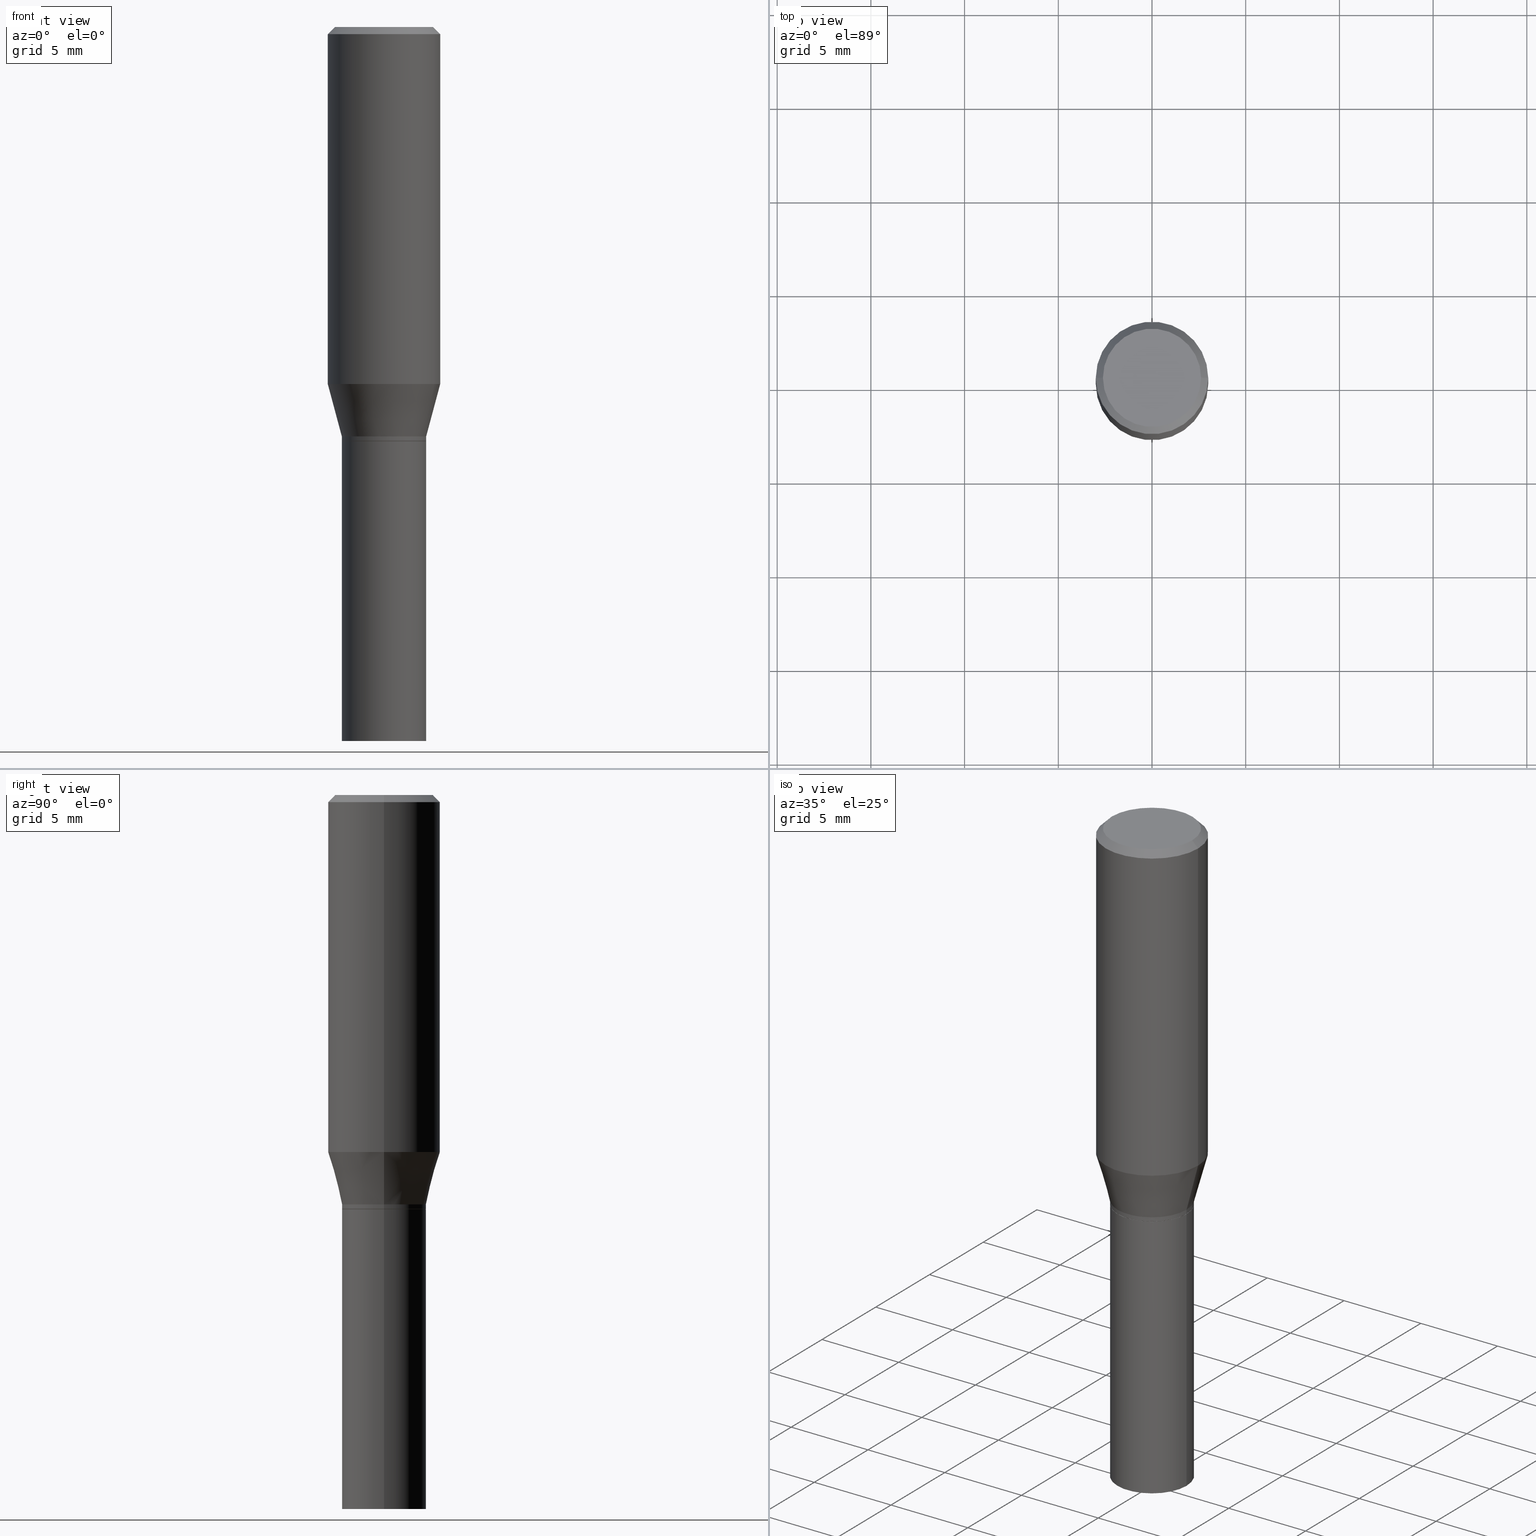
[diagram: canonical four-view strip — front | top / right | iso, engineering-drawing reading convention]
A machine part, canonical four-view strip (front | top / right | iso — engineering-drawing reading convention). The complete STEP part file that produces these views, byte-faithful:
ISO-10303-21;
HEADER;
FILE_DESCRIPTION (( 'STEP AP203' ),
    '1' );
FILE_NAME ('48678.STEP',
    '2024-03-12T19:42:43',
    ( '' ),
    ( '' ),
    'SwSTEP 2.0',
    'SolidWorks 2023',
    '' );
FILE_SCHEMA (( 'CONFIG_CONTROL_DESIGN' ));
ENDSEC;

DATA;
#1 = DIRECTION ( 'NONE',  ( -1.000000000000000000, 6.982962677686265922E-15, -4.876176775795935793E-29 ) ) ;
#2 = AXIS2_PLACEMENT_3D ( 'NONE', #188, #145, #253 ) ;
#3 = PLANE ( 'NONE',  #143 ) ;
#4 = DIRECTION ( 'NONE',  ( -2.445468806185136597E-29, 3.491481338843145583E-15, 1.000000000000000000 ) ) ;
#5 = APPROVAL_PERSON_ORGANIZATION ( #317, #271, #131 ) ;
#6 = EDGE_CURVE ( 'NONE', #165, #17, #219, .T. ) ;
#7 = CARTESIAN_POINT ( 'NONE',  ( 2.127802408261687534E-29, -3.037937912927420812E-15, -0.8700999999999999845 ) ) ;
#8 = EDGE_LOOP ( 'NONE', ( #238, #308 ) ) ;
#9 = COORDINATED_UNIVERSAL_TIME_OFFSET ( 5, 0, .BEHIND. ) ;
#10 = ORIENTED_EDGE ( 'NONE', *, *, #411, .T. ) ;
#11 = CARTESIAN_POINT ( 'NONE',  ( 2.127802408261687534E-29, -3.037937912927420812E-15, -0.8700999999999999845 ) ) ;
#12 = CC_DESIGN_DATE_AND_TIME_ASSIGNMENT ( #114, #262, ( #212 ) ) ;
#13 = EDGE_CURVE ( 'NONE', #273, #16, #123, .T. ) ;
#14 = CONICAL_SURFACE ( 'NONE', #81, 0.08809999999999999776, 0.7853981633977384913 ) ;
#15 =( LENGTH_UNIT ( ) NAMED_UNIT ( * ) SI_UNIT ( $, .METRE. ) );
#16 = VERTEX_POINT ( 'NONE', #306 ) ;
#17 = VERTEX_POINT ( 'NONE', #122 ) ;
#18 = DIRECTION ( 'NONE',  ( -2.445468806185136597E-29, 3.491481338843145583E-15, 1.000000000000000000 ) ) ;
#19 = ORIENTED_EDGE ( 'NONE', *, *, #33, .F. ) ;
#20 = DIRECTION ( 'NONE',  ( 1.000000000000000000, -6.982962677686266711E-15, 0.000000000000000000 ) ) ;
#21 = DIRECTION ( 'NONE',  ( -1.000000000000000000, 6.982962677686265922E-15, -4.876176775795935793E-29 ) ) ;
#22 = PRODUCT ( '48678', '48678', '', ( #224 ) ) ;
#23 = APPROVAL_DATE_TIME ( #349, #390 ) ;
#24 = ADVANCED_FACE ( 'NONE', ( #344 ), #202, .F. ) ;
#25 = VERTEX_POINT ( 'NONE', #443 ) ;
#26 = VERTEX_POINT ( 'NONE', #153 ) ;
#27 = VECTOR ( 'NONE', #71, 39.37007874015748143 ) ;
#28 = VERTEX_POINT ( 'NONE', #386 ) ;
#29 = AXIS2_PLACEMENT_3D ( 'NONE', #151, #302, #268 ) ;
#30 = DIRECTION ( 'NONE',  ( 1.000000000000000000, -6.982962677686266711E-15, 0.000000000000000000 ) ) ;
#31 = DATE_AND_TIME ( #462, #246 ) ;
#32 = CARTESIAN_POINT ( 'NONE',  ( -0.08809999999999999776, -2.411949762722772465E-15, -0.8700999999999999845 ) ) ;
#33 = EDGE_CURVE ( 'NONE', #17, #192, #161, .T. ) ;
#34 = SECURITY_CLASSIFICATION_LEVEL ( 'unclassified' ) ;
#35 = ORIENTED_EDGE ( 'NONE', *, *, #37, .F. ) ;
#36 = DIRECTION ( 'NONE',  ( -2.445468806185136597E-29, 3.491481338843145583E-15, 1.000000000000000000 ) ) ;
#37 = EDGE_CURVE ( 'NONE', #165, #57, #420, .T. ) ;
#38 = CLOSED_SHELL ( 'NONE', ( #463, #70, #193, #277, #105, #63, #404, #91, #24, #249, #326, #243 ) ) ;
#39 = CC_DESIGN_APPROVAL ( #390, ( #212 ) ) ;
#40 = LINE ( 'NONE', #177, #426 ) ;
#41 = FACE_OUTER_BOUND ( 'NONE', #259, .T. ) ;
#42 = EDGE_LOOP ( 'NONE', ( #350, #311 ) ) ;
#43 = CYLINDRICAL_SURFACE ( 'NONE', #45, 0.1180999999999999966 ) ;
#44 = DIRECTION ( 'NONE',  ( -2.445468806185136597E-29, 3.491481338843145583E-15, 1.000000000000000000 ) ) ;
#45 = AXIS2_PLACEMENT_3D ( 'NONE', #187, #4, #221 ) ;
#46 = COORDINATED_UNIVERSAL_TIME_OFFSET ( 5, 0, .BEHIND. ) ;
#47 = PERSON_AND_ORGANIZATION ( #185, #180 ) ;
#48 = ORIENTED_EDGE ( 'NONE', *, *, #37, .T. ) ;
#49 = EDGE_LOOP ( 'NONE', ( #108, #169, #53, #35 ) ) ;
#50 = CARTESIAN_POINT ( 'NONE',  ( 0.000000000000000000, 0.000000000000000000, 0.000000000000000000 ) ) ;
#51 = ORIENTED_EDGE ( 'NONE', *, *, #261, .T. ) ;
#52 = DIRECTION ( 'NONE',  ( -2.445468806185136597E-29, 3.491481338843145583E-15, 1.000000000000000000 ) ) ;
#53 = ORIENTED_EDGE ( 'NONE', *, *, #348, .F. ) ;
#54 = CLOSED_SHELL ( 'NONE', ( #222, #78, #298, #330 ) ) ;
#55 = AXIS2_PLACEMENT_3D ( 'NONE', #141, #129, #242 ) ;
#56 =( CONVERSION_BASED_UNIT ( 'INCH', #413 ) LENGTH_UNIT ( ) NAMED_UNIT ( #267 ) );
#57 = VERTEX_POINT ( 'NONE', #269 ) ;
#58 = ORIENTED_EDGE ( 'NONE', *, *, #358, .F. ) ;
#59 = APPLICATION_PROTOCOL_DEFINITION ( 'international standard', 'config_control_design', 1994, #274 ) ;
#60 = EDGE_LOOP ( 'NONE', ( #287, #450, #247, #126 ) ) ;
#61 = DIRECTION ( 'NONE',  ( 1.000000000000000000, -6.982962677686264344E-15, 0.000000000000000000 ) ) ;
#62 = VERTEX_POINT ( 'NONE', #166 ) ;
#63 = ADVANCED_FACE ( 'NONE', ( #90 ), #147, .T. ) ;
#64 = ORIENTED_EDGE ( 'NONE', *, *, #113, .F. ) ;
#65 = ORIENTED_EDGE ( 'NONE', *, *, #6, .F. ) ;
#66 = AXIS2_PLACEMENT_3D ( 'NONE', #264, #451, #232 ) ;
#67 = CIRCLE ( 'NONE', #332, 0.08809999999999999776 ) ;
#68 = CARTESIAN_POINT ( 'NONE',  ( 3.668203209277705088E-31, -5.237222008264718399E-17, -0.01499999999999999944 ) ) ;
#69 = DIRECTION ( 'NONE',  ( 1.000000000000000000, -6.982962677686264344E-15, 0.000000000000000000 ) ) ;
#70 = ADVANCED_FACE ( 'NONE', ( #127 ), #295, .T. ) ;
#71 = DIRECTION ( 'NONE',  ( -2.445468806185136877E-29, 3.491481338843145188E-15, 1.000000000000000000 ) ) ;
#72 = COORDINATED_UNIVERSAL_TIME_OFFSET ( 5, 0, .BEHIND. ) ;
#73 = DIRECTION ( 'NONE',  ( -2.438088387897960049E-29, 3.491481338843145188E-15, 1.000000000000000000 ) ) ;
#74 = AXIS2_PLACEMENT_3D ( 'NONE', #402, #104, #218 ) ;
#75 = CARTESIAN_POINT ( 'NONE',  ( -0.08859999999999999820, -3.508039096712621630E-15, -1.500000000000000222 ) ) ;
#76 = CIRCLE ( 'NONE', #340, 0.1180999999999999966 ) ;
#77 = DIRECTION ( 'NONE',  ( -2.445468806185136877E-29, 3.491481338843145188E-15, 1.000000000000000000 ) ) ;
#78 = ADVANCED_FACE ( 'NONE', ( #41 ), #323, .F. ) ;
#79 = FACE_OUTER_BOUND ( 'NONE', #159, .T. ) ;
#80 = VECTOR ( 'NONE', #288, 39.37007874015748143 ) ;
#81 = AXIS2_PLACEMENT_3D ( 'NONE', #11, #446, #69 ) ;
#82 = AXIS2_PLACEMENT_3D ( 'NONE', #395, #36, #461 ) ;
#83 = ORIENTED_EDGE ( 'NONE', *, *, #324, .T. ) ;
#84 = LINE ( 'NONE', #117, #392 ) ;
#85 = EDGE_LOOP ( 'NONE', ( #194, #83 ) ) ;
#86 = LINE ( 'NONE', #195, #112 ) ;
#87 = EDGE_LOOP ( 'NONE', ( #353, #94, #58, #387 ) ) ;
#88 = AXIS2_PLACEMENT_3D ( 'NONE', #339, #107, #265 ) ;
#89 = VERTEX_POINT ( 'NONE', #214 ) ;
#90 = FACE_OUTER_BOUND ( 'NONE', #375, .T. ) ;
#91 = ADVANCED_FACE ( 'NONE', ( #240 ), #110, .T. ) ;
#92 = CALENDAR_DATE ( 2024, 12, 3 ) ;
#93 = ORIENTED_EDGE ( 'NONE', *, *, #162, .T. ) ;
#94 = ORIENTED_EDGE ( 'NONE', *, *, #437, .T. ) ;
#95 = DIRECTION ( 'NONE',  ( 1.000000000000000000, -6.982962677686264344E-15, 0.000000000000000000 ) ) ;
#96 = VECTOR ( 'NONE', #356, 39.37007874015748854 ) ;
#97 = AXIS2_PLACEMENT_3D ( 'NONE', #377, #18, #230 ) ;
#98 = LINE ( 'NONE', #182, #80 ) ;
#99 = CARTESIAN_POINT ( 'NONE',  ( 2.127802408261687534E-29, -3.037937912927421601E-15, -0.8701000000000000956 ) ) ;
#100 = FACE_OUTER_BOUND ( 'NONE', #229, .T. ) ;
#101 = LOCAL_TIME ( 15, 42, 43.00000000000000000, #275 ) ;
#102 = FACE_OUTER_BOUND ( 'NONE', #87, .T. ) ;
#103 = EDGE_CURVE ( 'NONE', #334, #17, #171, .T. ) ;
#104 = DIRECTION ( 'NONE',  ( -2.445468806185136597E-29, 3.491481338843145583E-15, 1.000000000000000000 ) ) ;
#105 = ADVANCED_FACE ( 'NONE', ( #133 ), #417, .T. ) ;
#106 = AXIS2_PLACEMENT_3D ( 'NONE', #442, #160, #20 ) ;
#107 = DIRECTION ( 'NONE',  ( -2.445468806185136597E-29, 3.491481338843145583E-15, 1.000000000000000000 ) ) ;
#108 = ORIENTED_EDGE ( 'NONE', *, *, #6, .T. ) ;
#109 = CYLINDRICAL_SURFACE ( 'NONE', #29, 0.08859999999999999820 ) ;
#110 = CONICAL_SURFACE ( 'NONE', #363, 0.1180999999999999966, 0.7853981633974543852 ) ;
#111 = EDGE_LOOP ( 'NONE', ( #225, #93, #418, #305 ) ) ;
#112 = VECTOR ( 'NONE', #154, 39.37007874015748143 ) ;
#113 = EDGE_CURVE ( 'NONE', #441, #16, #424, .T. ) ;
#114 = DATE_AND_TIME ( #304, #364 ) ;
#115 = ORIENTED_EDGE ( 'NONE', *, *, #383, .F. ) ;
#116 = CARTESIAN_POINT ( 'NONE',  ( 3.668203209277705088E-31, -5.237222008264718399E-17, -0.01499999999999999944 ) ) ;
#117 = CARTESIAN_POINT ( 'NONE',  ( -0.1180999999999999966, 7.723156721521009862E-16, -0.01499999999999999944 ) ) ;
#118 = ORIENTED_EDGE ( 'NONE', *, *, #366, .T. ) ;
#119 = DIRECTION ( 'NONE',  ( 0.2588190451025210170, 1.565188264969624531E-15, 0.9659258262890682012 ) ) ;
#120 = ORIENTED_EDGE ( 'NONE', *, *, #383, .T. ) ;
#121 = CARTESIAN_POINT ( 'NONE',  ( 2.127802408261687534E-29, -3.037937912927420812E-15, -0.8700999999999999845 ) ) ;
#122 = CARTESIAN_POINT ( 'NONE',  ( -0.08859999999999995657, -2.076478992314868500E-15, -0.8601000000000001977 ) ) ;
#123 = CIRCLE ( 'NONE', #314, 0.1180999999999999966 ) ;
#124 = AXIS2_PLACEMENT_3D ( 'NONE', #367, #44, #186 ) ;
#125 = FACE_OUTER_BOUND ( 'NONE', #379, .T. ) ;
#126 = ORIENTED_EDGE ( 'NONE', *, *, #436, .F. ) ;
#127 = FACE_OUTER_BOUND ( 'NONE', #376, .T. ) ;
#128 = COORDINATED_UNIVERSAL_TIME_OFFSET ( 5, 0, .BEHIND. ) ;
#129 = DIRECTION ( 'NONE',  ( -2.445468806185136597E-29, 3.491481338843145583E-15, 1.000000000000000000 ) ) ;
#130 = CC_DESIGN_PERSON_AND_ORGANIZATION_ASSIGNMENT ( #396, #432, ( #419 ) ) ;
#131 = APPROVAL_ROLE ( '' ) ;
#132 = MANIFOLD_SOLID_BREP ( 'Body-Move/Copy2[1]', #54 ) ;
#133 = FACE_OUTER_BOUND ( 'NONE', #49, .T. ) ;
#134 = CIRCLE ( 'NONE', #372, 0.08859999999999999820 ) ;
#135 = CIRCLE ( 'NONE', #406, 0.1180999999999999966 ) ;
#136 = FACE_OUTER_BOUND ( 'NONE', #8, .T. ) ;
#137 = PERSON_AND_ORGANIZATION ( #185, #180 ) ;
#138 = ORIENTED_EDGE ( 'NONE', *, *, #157, .T. ) ;
#139 = CARTESIAN_POINT ( 'NONE',  ( 1.834112612126108016E-29, -2.618626719906874095E-15, -0.7500045011767182412 ) ) ;
#140 = APPROVAL_DATE_TIME ( #31, #271 ) ;
#141 = CARTESIAN_POINT ( 'NONE',  ( 0.000000000000000000, 0.000000000000000000, 0.000000000000000000 ) ) ;
#142 = AXIS2_PLACEMENT_3D ( 'NONE', #325, #361, #30 ) ;
#143 = AXIS2_PLACEMENT_3D ( 'NONE', #146, #256, #1 ) ;
#144 = CARTESIAN_POINT ( 'NONE',  ( 1.834112612126108016E-29, -2.618626719906874095E-15, -0.7500045011767182412 ) ) ;
#145 = DIRECTION ( 'NONE',  ( -2.445468806185136597E-29, 3.491481338843145583E-15, 1.000000000000000000 ) ) ;
#146 = CARTESIAN_POINT ( 'NONE',  ( 6.186904932430243507E-16, 0.08859999999999695897, -0.8701000000000003176 ) ) ;
#147 = CONICAL_SURFACE ( 'NONE', #327, 0.08859999999999995657, 0.2617993877991496854 ) ;
#148 = LINE ( 'NONE', #408, #296 ) ;
#149 = AXIS2_PLACEMENT_3D ( 'NONE', #99, #244, #294 ) ;
#150 = PERSON_AND_ORGANIZATION ( #185, #180 ) ;
#151 = CARTESIAN_POINT ( 'NONE',  ( 0.000000000000000000, 0.000000000000000000, 0.000000000000000000 ) ) ;
#152 = EDGE_CURVE ( 'NONE', #17, #165, #399, .T. ) ;
#153 = CARTESIAN_POINT ( 'NONE',  ( -0.08859999999999999820, -3.508039096712621630E-15, -0.8701000000000000956 ) ) ;
#154 = DIRECTION ( 'NONE',  ( 0.7071067811867527420, -2.468850131084406312E-15, 0.7071067811863422925 ) ) ;
#155 = ORIENTED_EDGE ( 'NONE', *, *, #103, .F. ) ;
#156 = AXIS2_PLACEMENT_3D ( 'NONE', #362, #393, #464 ) ;
#157 = EDGE_CURVE ( 'NONE', #57, #16, #40, .T. ) ;
#158 = CARTESIAN_POINT ( 'NONE',  ( -0.08809999999999999776, -2.409300535548661264E-15, -0.8700999999999999845 ) ) ;
#159 = EDGE_LOOP ( 'NONE', ( #416, #263, #138, #336 ) ) ;
#160 = DIRECTION ( 'NONE',  ( -2.445468806185136597E-29, 3.491481338843145583E-15, 1.000000000000000000 ) ) ;
#161 = LINE ( 'NONE', #309, #331 ) ;
#162 = EDGE_CURVE ( 'NONE', #192, #273, #98, .T. ) ;
#163 = LINE ( 'NONE', #333, #199 ) ;
#164 = ORIENTED_EDGE ( 'NONE', *, *, #200, .T. ) ;
#165 = VERTEX_POINT ( 'NONE', #428 ) ;
#166 = CARTESIAN_POINT ( 'NONE',  ( 0.08860000000000017861, -3.654882665501004233E-15, -0.8696000000000000396 ) ) ;
#167 = LOCAL_TIME ( 15, 42, 43.00000000000000000, #72 ) ;
#168 = APPROVAL_STATUS ( 'not_yet_approved' ) ;
#169 = ORIENTED_EDGE ( 'NONE', *, *, #33, .T. ) ;
#170 = CC_DESIGN_DATE_AND_TIME_ASSIGNMENT ( #460, #423, ( #454 ) ) ;
#171 = LINE ( 'NONE', #285, #27 ) ;
#172 = APPLICATION_CONTEXT ( 'configuration controlled 3d designs of mechanical parts and assemblies' ) ;
#173 = APPROVAL_DATE_TIME ( #278, #345 ) ;
#174 = CYLINDRICAL_SURFACE ( 'NONE', #55, 0.08859999999999999820 ) ;
#175 = EDGE_CURVE ( 'NONE', #192, #57, #76, .T. ) ;
#176 = PERSON_AND_ORGANIZATION ( #185, #180 ) ;
#177 = CARTESIAN_POINT ( 'NONE',  ( 0.1180999999999999966, -8.246878922347480654E-16, 5.758764772215000440E-30 ) ) ;
#178 = PRODUCT_RELATED_PRODUCT_CATEGORY ( 'detail', '', ( #22 ) ) ;
#179 = VECTOR ( 'NONE', #119, 39.37007874015748143 ) ;
#180 = ORGANIZATION ( 'UNSPECIFIED', 'UNSPECIFIED', '' ) ;
#181 = CC_DESIGN_APPROVAL ( #345, ( #454 ) ) ;
#182 = CARTESIAN_POINT ( 'NONE',  ( -0.1180999999999999966, 8.391509709326782957E-16, -5.809262341591043784E-30 ) ) ;
#183 = EDGE_CURVE ( 'NONE', #448, #201, #134, .T. ) ;
#184 = DIRECTION ( 'NONE',  ( -2.445468806185136597E-29, 3.491481338843145583E-15, 1.000000000000000000 ) ) ;
#185 = PERSON ( 'UNSPECIFIED', 'UNSPECIFIED', 'UNSPECIFIED', ('UNSPECIFIED'), ('UNSPECIFIED'), ('UNSPECIFIED') ) ;
#186 = DIRECTION ( 'NONE',  ( 1.000000000000000000, -6.982962677686269077E-15, 0.000000000000000000 ) ) ;
#187 = CARTESIAN_POINT ( 'NONE',  ( 0.000000000000000000, 0.000000000000000000, 0.000000000000000000 ) ) ;
#188 = CARTESIAN_POINT ( 'NONE',  ( 4.647400995173613138E-45, -6.635256932220833331E-31, -1.900413116462290932E-16 ) ) ;
#189 = CC_DESIGN_APPROVAL ( #271, ( #419 ) ) ;
#190 = APPLICATION_PROTOCOL_DEFINITION ( 'international standard', 'config_control_design', 1994, #172 ) ;
#191 = APPROVAL_ROLE ( '' ) ;
#192 = VERTEX_POINT ( 'NONE', #318 ) ;
#193 = ADVANCED_FACE ( 'NONE', ( #100 ), #197, .T. ) ;
#194 = ORIENTED_EDGE ( 'NONE', *, *, #368, .T. ) ;
#195 = CARTESIAN_POINT ( 'NONE',  ( 0.08809999999999999776, -3.653136924831581152E-15, -0.8700999999999999845 ) ) ;
#196 = EDGE_LOOP ( 'NONE', ( #155, #236, #120, #389 ) ) ;
#197 = CONICAL_SURFACE ( 'NONE', #321, 0.1180999999999999966, 0.7853981633974543852 ) ;
#198 = DIRECTION ( 'NONE',  ( 1.000000000000000000, -6.982962677686266711E-15, 0.000000000000000000 ) ) ;
#199 = VECTOR ( 'NONE', #226, 39.37007874015748143 ) ;
#200 = EDGE_CURVE ( 'NONE', #412, #334, #360, .T. ) ;
#201 = VERTEX_POINT ( 'NONE', #75 ) ;
#202 = PLANE ( 'NONE',  #354 ) ;
#203 = APPROVAL_STATUS ( 'not_yet_approved' ) ;
#204 = EDGE_LOOP ( 'NONE', ( #64, #338, #266, #453 ) ) ;
#205 = CARTESIAN_POINT ( 'NONE',  ( 4.647400995173613138E-45, -6.635256932220833331E-31, -1.900413116462290932E-16 ) ) ;
#206 = ORIENTED_EDGE ( 'NONE', *, *, #415, .F. ) ;
#207 = CARTESIAN_POINT ( 'NONE',  ( 3.576687321579069994E-29, -5.368277968210015545E-15, -1.500000000000000222 ) ) ;
#208 = AXIS2_PLACEMENT_3D ( 'NONE', #220, #251, #403 ) ;
#209 = DIRECTION ( 'NONE',  ( -1.000000000000000000, 6.982962677686266711E-15, 0.000000000000000000 ) ) ;
#210 = APPROVAL_ROLE ( '' ) ;
#211 = DIRECTION ( 'NONE',  ( 1.000000000000000000, -6.982962677686269077E-15, 0.000000000000000000 ) ) ;
#212 = PRODUCT_DEFINITION ( 'UNKNOWN', '', #419, #289 ) ;
#213 = PERSON_AND_ORGANIZATION_ROLE ( 'classification_officer' ) ;
#214 = CARTESIAN_POINT ( 'NONE',  ( 0.08859999999999999820, -3.656628406170424159E-15, -0.8701000000000000956 ) ) ;
#215 = CALENDAR_DATE ( 2024, 12, 3 ) ;
#216 = AXIS2_PLACEMENT_3D ( 'NONE', #276, #459, #431 ) ;
#217 = CARTESIAN_POINT ( 'NONE',  ( 3.668203209277705088E-31, -5.237222008264718399E-17, -0.01499999999999999944 ) ) ;
#218 = DIRECTION ( 'NONE',  ( 1.000000000000000000, -6.982962677686263555E-15, 0.000000000000000000 ) ) ;
#219 = CIRCLE ( 'NONE', #66, 0.08859999999999995657 ) ;
#220 = CARTESIAN_POINT ( 'NONE',  ( 2.127802408261687534E-29, -3.037937912927421601E-15, -0.8701000000000000956 ) ) ;
#221 = DIRECTION ( 'NONE',  ( 1.000000000000000000, -6.982962677686266711E-15, 4.876176775795936353E-29 ) ) ;
#222 = ADVANCED_FACE ( 'NONE', ( #102 ), #174, .T. ) ;
#223 = AXIS2_PLACEMENT_3D ( 'NONE', #121, #239, #61 ) ;
#224 = MECHANICAL_CONTEXT ( 'NONE', #274, 'mechanical' ) ;
#225 = ORIENTED_EDGE ( 'NONE', *, *, #348, .T. ) ;
#226 = DIRECTION ( 'NONE',  ( -2.445468806185136877E-29, 3.491481338843145188E-15, 1.000000000000000000 ) ) ;
#227 = ORIENTED_EDGE ( 'NONE', *, *, #425, .F. ) ;
#228 = FACE_OUTER_BOUND ( 'NONE', #60, .T. ) ;
#229 = EDGE_LOOP ( 'NONE', ( #421, #385, #378, #227 ) ) ;
#230 = DIRECTION ( 'NONE',  ( 1.000000000000000000, -6.982962677686265922E-15, 0.000000000000000000 ) ) ;
#231 = ORIENTED_EDGE ( 'NONE', *, *, #437, .F. ) ;
#232 = DIRECTION ( 'NONE',  ( 1.000000000000000000, -6.982962677686266711E-15, 0.000000000000000000 ) ) ;
#233 = LOCAL_TIME ( 15, 42, 43.00000000000000000, #46 ) ;
#234 = DIRECTION ( 'NONE',  ( 0.000000000000000000, 0.000000000000000000, 1.000000000000000000 ) ) ;
#235 = ORIENTED_EDGE ( 'NONE', *, *, #183, .F. ) ;
#236 = ORIENTED_EDGE ( 'NONE', *, *, #436, .T. ) ;
#237 = PERSON_AND_ORGANIZATION ( #185, #180 ) ;
#238 = ORIENTED_EDGE ( 'NONE', *, *, #411, .F. ) ;
#239 = DIRECTION ( 'NONE',  ( -2.445468806185136597E-29, 3.491481338843145583E-15, 1.000000000000000000 ) ) ;
#240 = FACE_OUTER_BOUND ( 'NONE', #204, .T. ) ;
#241 = EDGE_CURVE ( 'NONE', #62, #334, #357, .T. ) ;
#242 = DIRECTION ( 'NONE',  ( 1.000000000000000000, -6.982962677686266711E-15, 4.876176775795935232E-29 ) ) ;
#243 = ADVANCED_FACE ( 'NONE', ( #434 ), #248, .T. ) ;
#244 = DIRECTION ( 'NONE',  ( -2.438088387897960049E-29, 3.491481338843145188E-15, 1.000000000000000000 ) ) ;
#245 = DIRECTION ( 'NONE',  ( 2.445468806185136597E-29, -3.491481338843145583E-15, -1.000000000000000000 ) ) ;
#246 = LOCAL_TIME ( 15, 42, 43.00000000000000000, #128 ) ;
#247 = ORIENTED_EDGE ( 'NONE', *, *, #415, .T. ) ;
#248 = CYLINDRICAL_SURFACE ( 'NONE', #82, 0.08860000000000008147 ) ;
#249 = ADVANCED_FACE ( 'NONE', ( #136 ), #283, .F. ) ;
#250 = DIRECTION ( 'NONE',  ( 1.000000000000000000, -6.982962677686265133E-15, 0.000000000000000000 ) ) ;
#251 = DIRECTION ( 'NONE',  ( -2.445468806185136597E-29, 3.491481338843145583E-15, 1.000000000000000000 ) ) ;
#252 = APPROVAL_PERSON_ORGANIZATION ( #47, #390, #191 ) ;
#253 = DIRECTION ( 'NONE',  ( 1.000000000000000000, -6.982962677686265922E-15, 4.883331232093008327E-29 ) ) ;
#254 = CC_DESIGN_PERSON_AND_ORGANIZATION_ASSIGNMENT ( #137, #286, ( #419 ) ) ;
#255 = UNCERTAINTY_MEASURE_WITH_UNIT (LENGTH_MEASURE( 1.000000000000000082E-05 ), #56, 'distance_accuracy_value', 'NONE');
#256 = DIRECTION ( 'NONE',  ( 2.438088387897960049E-29, -3.491481338843145188E-15, -1.000000000000000000 ) ) ;
#257 =( NAMED_UNIT ( * ) SI_UNIT ( $, .STERADIAN. ) SOLID_ANGLE_UNIT ( ) );
#258 = AXIS2_PLACEMENT_3D ( 'NONE', #207, #73, #365 ) ;
#259 = EDGE_LOOP ( 'NONE', ( #235, #410 ) ) ;
#260 = CIRCLE ( 'NONE', #2, 0.1031000000000000111 ) ;
#261 = EDGE_CURVE ( 'NONE', #448, #89, #148, .T. ) ;
#262 = DATE_TIME_ROLE ( 'creation_date' ) ;
#263 = ORIENTED_EDGE ( 'NONE', *, *, #175, .T. ) ;
#264 = CARTESIAN_POINT ( 'NONE',  ( 2.103347720199836549E-29, -3.003023099538990346E-15, -0.8601000000000001977 ) ) ;
#265 = DIRECTION ( 'NONE',  ( 1.000000000000000000, -6.982962677686267499E-15, 4.876176775795935793E-29 ) ) ;
#266 = ORIENTED_EDGE ( 'NONE', *, *, #425, .T. ) ;
#267 = DIMENSIONAL_EXPONENTS ( 1.000000000000000000, 0.000000000000000000, 0.000000000000000000, 0.000000000000000000, 0.000000000000000000, 0.000000000000000000, 0.000000000000000000 ) ;
#268 = DIRECTION ( 'NONE',  ( 1.000000000000000000, -6.982962677686266711E-15, 4.876176775795935232E-29 ) ) ;
#269 = CARTESIAN_POINT ( 'NONE',  ( 0.1180999999999999966, -3.443314612141622358E-15, -0.7500045011767182412 ) ) ;
#270 = ORIENTED_EDGE ( 'NONE', *, *, #241, .F. ) ;
#271 = APPROVAL ( #465, 'UNSPECIFIED' ) ;
#272 = DIRECTION ( 'NONE',  ( 2.438088387897960049E-29, -3.491481338843145188E-15, -1.000000000000000000 ) ) ;
#273 = VERTEX_POINT ( 'NONE', #391 ) ;
#274 = APPLICATION_CONTEXT ( 'configuration controlled 3d designs of mechanical parts and assemblies' ) ;
#275 = COORDINATED_UNIVERSAL_TIME_OFFSET ( 5, 0, .BEHIND. ) ;
#276 = CARTESIAN_POINT ( 'NONE',  ( 2.126579673858595013E-29, -3.036192172257999703E-15, -0.8696000000000000396 ) ) ;
#277 = ADVANCED_FACE ( 'NONE', ( #299 ), #394, .T. ) ;
#278 = DATE_AND_TIME ( #92, #167 ) ;
#279 = DIRECTION ( 'NONE',  ( -2.445468806185136877E-29, 3.491481338843145188E-15, 1.000000000000000000 ) ) ;
#280 = AXIS2_PLACEMENT_3D ( 'NONE', #422, #319, #95 ) ;
#281 = VECTOR ( 'NONE', #77, 39.37007874015748143 ) ;
#282 = EDGE_CURVE ( 'NONE', #16, #273, #427, .T. ) ;
#283 = PLANE ( 'NONE',  #149 ) ;
#284 = CARTESIAN_POINT ( 'NONE',  ( 0.000000000000000000, 0.000000000000000000, 0.000000000000000000 ) ) ;
#285 = CARTESIAN_POINT ( 'NONE',  ( -0.08860000000000008147, 6.295408638834493435E-16, -4.358176489965850471E-30 ) ) ;
#286 = PERSON_AND_ORGANIZATION_ROLE ( 'creator' ) ;
#287 = ORIENTED_EDGE ( 'NONE', *, *, #200, .F. ) ;
#288 = DIRECTION ( 'NONE',  ( -2.445468806185136877E-29, 3.491481338843145188E-15, 1.000000000000000000 ) ) ;
#289 = DESIGN_CONTEXT ( 'detailed design', #172, 'design' ) ;
#290 = AXIS2_PLACEMENT_3D ( 'NONE', #205, #52, #455 ) ;
#291 = CC_DESIGN_SECURITY_CLASSIFICATION ( #454, ( #419 ) ) ;
#292 = EDGE_CURVE ( 'NONE', #412, #28, #355, .T. ) ;
#293 = CC_DESIGN_PERSON_AND_ORGANIZATION_ASSIGNMENT ( #440, #374, ( #22 ) ) ;
#294 = DIRECTION ( 'NONE',  ( 1.000000000000000000, -6.982962677686265922E-15, 4.876176775795935793E-29 ) ) ;
#295 = CONICAL_SURFACE ( 'NONE', #280, 0.08809999999999999776, 0.7853981633977384913 ) ;
#296 = VECTOR ( 'NONE', #329, 39.37007874015748143 ) ;
#297 = LINE ( 'NONE', #407, #281 ) ;
#298 = ADVANCED_FACE ( 'NONE', ( #388 ), #109, .T. ) ;
#299 = FACE_OUTER_BOUND ( 'NONE', #111, .T. ) ;
#300 = DIRECTION ( 'NONE',  ( -2.445468806185136597E-29, 3.491481338843145583E-15, 1.000000000000000000 ) ) ;
#301 = PERSON_AND_ORGANIZATION_ROLE ( 'creator' ) ;
#302 = DIRECTION ( 'NONE',  ( -2.445468806185136597E-29, 3.491481338843145583E-15, 1.000000000000000000 ) ) ;
#303 = DIRECTION ( 'NONE',  ( 1.000000000000000000, -6.982962677686266711E-15, 0.000000000000000000 ) ) ;
#304 = CALENDAR_DATE ( 2024, 12, 3 ) ;
#305 = ORIENTED_EDGE ( 'NONE', *, *, #157, .F. ) ;
#306 = CARTESIAN_POINT ( 'NONE',  ( 0.1180999999999999966, -8.770601123173952432E-16, -0.01499999999999999944 ) ) ;
#307 =( NAMED_UNIT ( * ) PLANE_ANGLE_UNIT ( ) SI_UNIT ( $, .RADIAN. ) );
#308 = ORIENTED_EDGE ( 'NONE', *, *, #292, .F. ) ;
#309 = CARTESIAN_POINT ( 'NONE',  ( -0.08859999999999995657, -2.373482235655541495E-15, -0.8601000000000001977 ) ) ;
#310 = CARTESIAN_POINT ( 'NONE',  ( 0.08859999999999999820, -5.855912501507721918E-15, -1.500000000000000222 ) ) ;
#311 = ORIENTED_EDGE ( 'NONE', *, *, #359, .T. ) ;
#312 = CYLINDRICAL_SURFACE ( 'NONE', #88, 0.08860000000000008147 ) ;
#313 = ORIENTED_EDGE ( 'NONE', *, *, #103, .T. ) ;
#314 = AXIS2_PLACEMENT_3D ( 'NONE', #116, #447, #198 ) ;
#315 = CARTESIAN_POINT ( 'NONE',  ( 2.103347720199836549E-29, -3.003023099538990346E-15, -0.8601000000000001977 ) ) ;
#316 =( GEOMETRIC_REPRESENTATION_CONTEXT ( 3 ) GLOBAL_UNCERTAINTY_ASSIGNED_CONTEXT ( ( #255 ) ) GLOBAL_UNIT_ASSIGNED_CONTEXT ( ( #56, #307, #257 ) ) REPRESENTATION_CONTEXT ( 'NONE', 'WORKASPACE' ) );
#317 = PERSON_AND_ORGANIZATION ( #185, #180 ) ;
#318 = CARTESIAN_POINT ( 'NONE',  ( -0.1180999999999999966, -1.779475748974195504E-15, -0.7500045011767182412 ) ) ;
#319 = DIRECTION ( 'NONE',  ( -2.445468806185136597E-29, 3.491481338843145583E-15, 1.000000000000000000 ) ) ;
#320 = DIRECTION ( 'NONE',  ( -2.445468806185136597E-29, 3.491481338843145583E-15, 1.000000000000000000 ) ) ;
#321 = AXIS2_PLACEMENT_3D ( 'NONE', #217, #245, #398 ) ;
#322 = CIRCLE ( 'NONE', #97, 0.08860000000000017861 ) ;
#323 = PLANE ( 'NONE',  #258 ) ;
#324 = EDGE_CURVE ( 'NONE', #441, #25, #435, .T. ) ;
#325 = CARTESIAN_POINT ( 'NONE',  ( 2.103347720199836549E-29, -3.003023099538990346E-15, -0.8601000000000001977 ) ) ;
#326 = ADVANCED_FACE ( 'NONE', ( #228 ), #14, .T. ) ;
#327 = AXIS2_PLACEMENT_3D ( 'NONE', #315, #456, #303 ) ;
#328 = AXIS2_PLACEMENT_3D ( 'NONE', #284, #343, #337 ) ;
#329 = DIRECTION ( 'NONE',  ( -2.445468806185136877E-29, 3.491481338843145188E-15, 1.000000000000000000 ) ) ;
#330 = ADVANCED_FACE ( 'NONE', ( #370 ), #3, .F. ) ;
#331 = VECTOR ( 'NONE', #449, 39.37007874015748143 ) ;
#332 = AXIS2_PLACEMENT_3D ( 'NONE', #7, #300, #452 ) ;
#333 = CARTESIAN_POINT ( 'NONE',  ( -0.08859999999999999820, 6.295408638834487519E-16, -4.358176489965846267E-30 ) ) ;
#334 = VERTEX_POINT ( 'NONE', #369 ) ;
#335 = CALENDAR_DATE ( 2024, 12, 3 ) ;
#336 = ORIENTED_EDGE ( 'NONE', *, *, #13, .F. ) ;
#337 = DIRECTION ( 'NONE',  ( 1.000000000000000000, -6.982962677686266711E-15, 4.876176775795936353E-29 ) ) ;
#338 = ORIENTED_EDGE ( 'NONE', *, *, #368, .F. ) ;
#339 = CARTESIAN_POINT ( 'NONE',  ( 0.000000000000000000, 0.000000000000000000, 0.000000000000000000 ) ) ;
#340 = AXIS2_PLACEMENT_3D ( 'NONE', #139, #184, #466 ) ;
#341 = EDGE_LOOP ( 'NONE', ( #231, #118, #51, #445 ) ) ;
#342 = CIRCLE ( 'NONE', #208, 0.08859999999999999820 ) ;
#343 = DIRECTION ( 'NONE',  ( -2.445468806185136597E-29, 3.491481338843145583E-15, 1.000000000000000000 ) ) ;
#344 = FACE_OUTER_BOUND ( 'NONE', #85, .T. ) ;
#345 = APPROVAL ( #168, 'UNSPECIFIED' ) ;
#346 = DIRECTION ( 'NONE',  ( -0.7071067811865516806, 2.468850131082300842E-15, -0.7071067811865431318 ) ) ;
#347 = ORIENTED_EDGE ( 'NONE', *, *, #175, .F. ) ;
#348 = EDGE_CURVE ( 'NONE', #57, #192, #135, .T. ) ;
#349 = DATE_AND_TIME ( #335, #233 ) ;
#350 = ORIENTED_EDGE ( 'NONE', *, *, #358, .T. ) ;
#351 = PRODUCT_DEFINITION_SHAPE ( 'NONE', 'NONE',  #212 ) ;
#352 = CARTESIAN_POINT ( 'NONE',  ( 7.199434520694541042E-16, 0.1031000000000000111, -4.549923818578428559E-16 ) ) ;
#353 = ORIENTED_EDGE ( 'NONE', *, *, #183, .T. ) ;
#354 = AXIS2_PLACEMENT_3D ( 'NONE', #352, #272, #21 ) ;
#355 = CIRCLE ( 'NONE', #223, 0.08809999999999999776 ) ;
#356 = DIRECTION ( 'NONE',  ( 0.7071067811865516806, -7.319954787623268667E-15, -0.7071067811865431318 ) ) ;
#357 = CIRCLE ( 'NONE', #216, 0.08860000000000017861 ) ;
#358 = EDGE_CURVE ( 'NONE', #89, #26, #400, .T. ) ;
#359 = EDGE_CURVE ( 'NONE', #26, #89, #342, .T. ) ;
#360 = LINE ( 'NONE', #32, #405 ) ;
#361 = DIRECTION ( 'NONE',  ( -2.445468806185136597E-29, 3.491481338843145583E-15, 1.000000000000000000 ) ) ;
#362 = CARTESIAN_POINT ( 'NONE',  ( 2.103347720199836549E-29, -3.003023099538990346E-15, -0.8601000000000001977 ) ) ;
#363 = AXIS2_PLACEMENT_3D ( 'NONE', #68, #457, #209 ) ;
#364 = LOCAL_TIME ( 15, 42, 43.00000000000000000, #9 ) ;
#365 = DIRECTION ( 'NONE',  ( 1.000000000000000000, -6.982962677686265922E-15, 4.876176775795935793E-29 ) ) ;
#366 = EDGE_CURVE ( 'NONE', #201, #448, #444, .T. ) ;
#367 = CARTESIAN_POINT ( 'NONE',  ( 3.668203209277704895E-29, -5.237222008264718177E-15, -1.500000000000000222 ) ) ;
#368 = EDGE_CURVE ( 'NONE', #25, #441, #260, .T. ) ;
#369 = CARTESIAN_POINT ( 'NONE',  ( -0.08860000000000017861, -2.406651308374549669E-15, -0.8696000000000000396 ) ) ;
#370 = FACE_OUTER_BOUND ( 'NONE', #42, .T. ) ;
#371 = CC_DESIGN_PERSON_AND_ORGANIZATION_ASSIGNMENT ( #150, #301, ( #212 ) ) ;
#372 = AXIS2_PLACEMENT_3D ( 'NONE', #433, #320, #211 ) ;
#373 = APPROVAL_PERSON_ORGANIZATION ( #237, #345, #210 ) ;
#374 = PERSON_AND_ORGANIZATION_ROLE ( 'design_owner' ) ;
#375 = EDGE_LOOP ( 'NONE', ( #19, #414, #48, #347 ) ) ;
#376 = EDGE_LOOP ( 'NONE', ( #10, #164, #270, #206 ) ) ;
#377 = CARTESIAN_POINT ( 'NONE',  ( 2.126579673858595013E-29, -3.036192172257999703E-15, -0.8696000000000000396 ) ) ;
#378 = ORIENTED_EDGE ( 'NONE', *, *, #282, .T. ) ;
#379 = EDGE_LOOP ( 'NONE', ( #380, #313, #65, #115 ) ) ;
#380 = ORIENTED_EDGE ( 'NONE', *, *, #241, .T. ) ;
#381 = AXIS2_PLACEMENT_3D ( 'NONE', #50, #234, #384 ) ;
#382 = CARTESIAN_POINT ( 'NONE',  ( 0.08859999999999995657, -3.621713592781993299E-15, -0.8601000000000001977 ) ) ;
#383 = EDGE_CURVE ( 'NONE', #62, #165, #297, .T. ) ;
#384 = DIRECTION ( 'NONE',  ( 1.000000000000000000, 0.000000000000000000, 0.000000000000000000 ) ) ;
#385 = ORIENTED_EDGE ( 'NONE', *, *, #113, .T. ) ;
#386 = CARTESIAN_POINT ( 'NONE',  ( 0.08809999999999999776, -3.653136924831581152E-15, -0.8700999999999999845 ) ) ;
#387 = ORIENTED_EDGE ( 'NONE', *, *, #261, .F. ) ;
#388 = FACE_OUTER_BOUND ( 'NONE', #341, .T. ) ;
#389 = ORIENTED_EDGE ( 'NONE', *, *, #152, .F. ) ;
#390 = APPROVAL ( #203, 'UNSPECIFIED' ) ;
#391 = CARTESIAN_POINT ( 'NONE',  ( -0.1180999999999999966, -4.963484990620821929E-16, -0.01499999999999999944 ) ) ;
#392 = VECTOR ( 'NONE', #346, 39.37007874015748854 ) ;
#393 = DIRECTION ( 'NONE',  ( -2.445468806185136597E-29, 3.491481338843145583E-15, 1.000000000000000000 ) ) ;
#394 = CYLINDRICAL_SURFACE ( 'NONE', #328, 0.1180999999999999966 ) ;
#395 = CARTESIAN_POINT ( 'NONE',  ( 0.000000000000000000, 0.000000000000000000, 0.000000000000000000 ) ) ;
#396 = PERSON_AND_ORGANIZATION ( #185, #180 ) ;
#397 = DIRECTION ( 'NONE',  ( -0.7071067811867527420, 7.493145998871095689E-15, 0.7071067811863422925 ) ) ;
#398 = DIRECTION ( 'NONE',  ( -1.000000000000000000, 6.982962677686266711E-15, 0.000000000000000000 ) ) ;
#399 = CIRCLE ( 'NONE', #142, 0.08859999999999995657 ) ;
#400 = CIRCLE ( 'NONE', #74, 0.08859999999999999820 ) ;
#401 = CARTESIAN_POINT ( 'NONE',  ( 0.1180999999999999966, -8.625970336194650129E-16, -0.01499999999999999944 ) ) ;
#402 = CARTESIAN_POINT ( 'NONE',  ( 2.127802408261687534E-29, -3.037937912927421601E-15, -0.8701000000000000956 ) ) ;
#403 = DIRECTION ( 'NONE',  ( 1.000000000000000000, -6.982962677686263555E-15, 0.000000000000000000 ) ) ;
#404 = ADVANCED_FACE ( 'NONE', ( #79 ), #43, .T. ) ;
#405 = VECTOR ( 'NONE', #397, 39.37007874015748143 ) ;
#406 = AXIS2_PLACEMENT_3D ( 'NONE', #144, #439, #250 ) ;
#407 = CARTESIAN_POINT ( 'NONE',  ( 0.08860000000000008147, -6.186904932430038403E-16, 4.320292623355202969E-30 ) ) ;
#408 = CARTESIAN_POINT ( 'NONE',  ( 0.08859999999999999820, -6.186904932430032487E-16, 4.320292623355198765E-30 ) ) ;
#409 = CARTESIAN_POINT ( 'NONE',  ( 0.1031000000000000111, -7.849571885948552706E-16, -1.900413116462238423E-16 ) ) ;
#410 = ORIENTED_EDGE ( 'NONE', *, *, #366, .F. ) ;
#411 = EDGE_CURVE ( 'NONE', #28, #412, #67, .T. ) ;
#412 = VERTEX_POINT ( 'NONE', #158 ) ;
#413 = LENGTH_MEASURE_WITH_UNIT ( LENGTH_MEASURE( 0.02539999999999999897 ), #15 );
#414 = ORIENTED_EDGE ( 'NONE', *, *, #152, .T. ) ;
#415 = EDGE_CURVE ( 'NONE', #28, #62, #86, .T. ) ;
#416 = ORIENTED_EDGE ( 'NONE', *, *, #162, .F. ) ;
#417 = CONICAL_SURFACE ( 'NONE', #156, 0.08859999999999995657, 0.2617993877991496854 ) ;
#418 = ORIENTED_EDGE ( 'NONE', *, *, #282, .F. ) ;
#419 = PRODUCT_DEFINITION_FORMATION_WITH_SPECIFIED_SOURCE ( 'ANY', '', #22, .NOT_KNOWN. ) ;
#420 = LINE ( 'NONE', #382, #179 ) ;
#421 = ORIENTED_EDGE ( 'NONE', *, *, #324, .F. ) ;
#422 = CARTESIAN_POINT ( 'NONE',  ( 2.127802408261687534E-29, -3.037937912927420812E-15, -0.8700999999999999845 ) ) ;
#423 = DATE_TIME_ROLE ( 'classification_date' ) ;
#424 = LINE ( 'NONE', #401, #96 ) ;
#425 = EDGE_CURVE ( 'NONE', #25, #273, #84, .T. ) ;
#426 = VECTOR ( 'NONE', #279, 39.37007874015748143 ) ;
#427 = CIRCLE ( 'NONE', #106, 0.1180999999999999966 ) ;
#428 = CARTESIAN_POINT ( 'NONE',  ( 0.08859999999999995657, -3.621713592781993299E-15, -0.8601000000000001977 ) ) ;
#429 = ADVANCED_BREP_SHAPE_REPRESENTATION ( '48678', ( #132, #438, #381 ), #316 ) ;
#430 = CC_DESIGN_PERSON_AND_ORGANIZATION_ASSIGNMENT ( #176, #213, ( #454 ) ) ;
#431 = DIRECTION ( 'NONE',  ( 1.000000000000000000, -6.982962677686265922E-15, 0.000000000000000000 ) ) ;
#432 = PERSON_AND_ORGANIZATION_ROLE ( 'design_supplier' ) ;
#433 = CARTESIAN_POINT ( 'NONE',  ( 3.668203209277704895E-29, -5.237222008264718177E-15, -1.500000000000000222 ) ) ;
#434 = FACE_OUTER_BOUND ( 'NONE', #196, .T. ) ;
#435 = CIRCLE ( 'NONE', #290, 0.1031000000000000111 ) ;
#436 = EDGE_CURVE ( 'NONE', #334, #62, #322, .T. ) ;
#437 = EDGE_CURVE ( 'NONE', #201, #26, #163, .T. ) ;
#438 = MANIFOLD_SOLID_BREP ( 'Body-Move/Copy2[2]', #38 ) ;
#439 = DIRECTION ( 'NONE',  ( -2.445468806185136597E-29, 3.491481338843145583E-15, 1.000000000000000000 ) ) ;
#440 = PERSON_AND_ORGANIZATION ( #185, #180 ) ;
#441 = VERTEX_POINT ( 'NONE', #409 ) ;
#442 = CARTESIAN_POINT ( 'NONE',  ( 3.668203209277705088E-31, -5.237222008264718399E-17, -0.01499999999999999944 ) ) ;
#443 = CARTESIAN_POINT ( 'NONE',  ( -0.1031000000000000111, 7.461295621107772493E-16, -1.900413116462341961E-16 ) ) ;
#444 = CIRCLE ( 'NONE', #124, 0.08859999999999999820 ) ;
#445 = ORIENTED_EDGE ( 'NONE', *, *, #359, .F. ) ;
#446 = DIRECTION ( 'NONE',  ( -2.445468806185136597E-29, 3.491481338843145583E-15, 1.000000000000000000 ) ) ;
#447 = DIRECTION ( 'NONE',  ( -2.445468806185136597E-29, 3.491481338843145583E-15, 1.000000000000000000 ) ) ;
#448 = VERTEX_POINT ( 'NONE', #310 ) ;
#449 = DIRECTION ( 'NONE',  ( -0.2588190451025210170, 5.211531920934547886E-15, 0.9659258262890682012 ) ) ;
#450 = ORIENTED_EDGE ( 'NONE', *, *, #292, .T. ) ;
#451 = DIRECTION ( 'NONE',  ( -2.445468806185136597E-29, 3.491481338843145583E-15, 1.000000000000000000 ) ) ;
#452 = DIRECTION ( 'NONE',  ( 1.000000000000000000, -6.982962677686264344E-15, 0.000000000000000000 ) ) ;
#453 = ORIENTED_EDGE ( 'NONE', *, *, #13, .T. ) ;
#454 = SECURITY_CLASSIFICATION ( '', '', #34 ) ;
#455 = DIRECTION ( 'NONE',  ( 1.000000000000000000, -6.982962677686265922E-15, 4.883331232093008327E-29 ) ) ;
#456 = DIRECTION ( 'NONE',  ( -2.445468806185136597E-29, 3.491481338843145583E-15, 1.000000000000000000 ) ) ;
#457 = DIRECTION ( 'NONE',  ( 2.445468806185136597E-29, -3.491481338843145583E-15, -1.000000000000000000 ) ) ;
#458 = SHAPE_DEFINITION_REPRESENTATION ( #351, #429 ) ;
#459 = DIRECTION ( 'NONE',  ( -2.445468806185136597E-29, 3.491481338843145583E-15, 1.000000000000000000 ) ) ;
#460 = DATE_AND_TIME ( #215, #101 ) ;
#461 = DIRECTION ( 'NONE',  ( 1.000000000000000000, -6.982962677686267499E-15, 4.876176775795935793E-29 ) ) ;
#462 = CALENDAR_DATE ( 2024, 12, 3 ) ;
#463 = ADVANCED_FACE ( 'NONE', ( #125 ), #312, .T. ) ;
#464 = DIRECTION ( 'NONE',  ( 1.000000000000000000, -6.982962677686266711E-15, 0.000000000000000000 ) ) ;
#465 = APPROVAL_STATUS ( 'not_yet_approved' ) ;
#466 = DIRECTION ( 'NONE',  ( 1.000000000000000000, -6.982962677686265133E-15, 0.000000000000000000 ) ) ;
ENDSEC;
END-ISO-10303-21;
